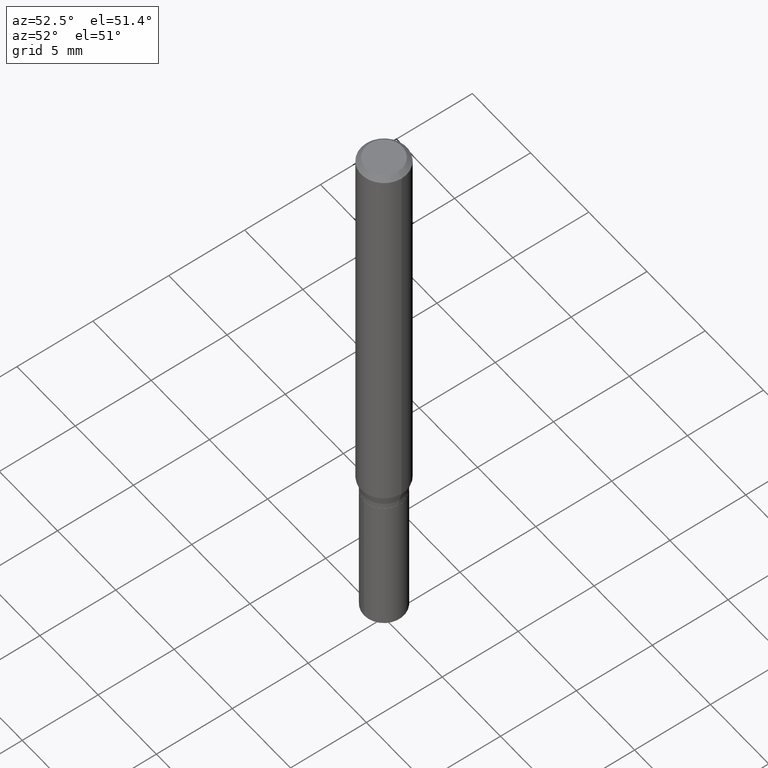
[diagram: clean part render]
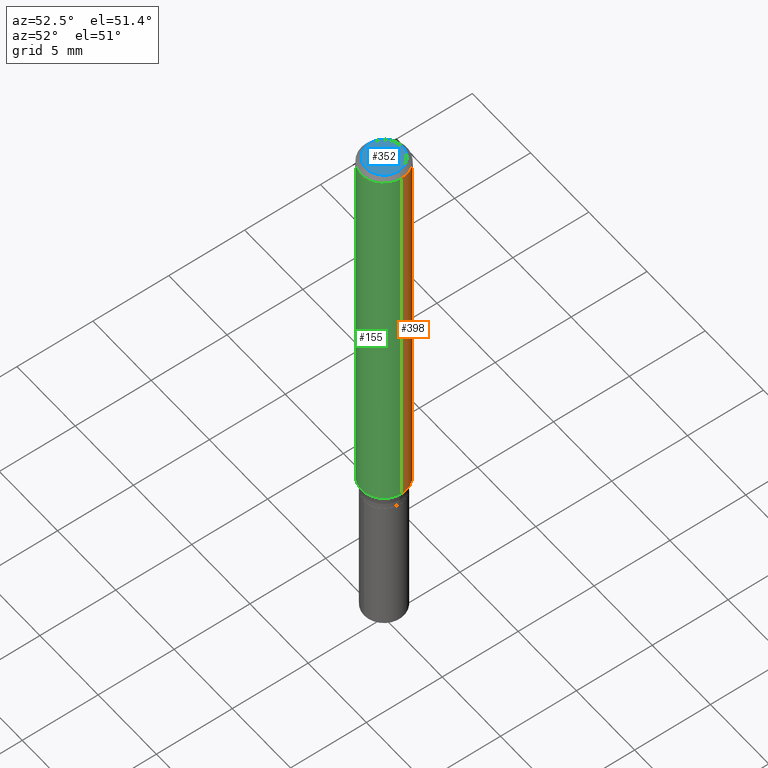
[diagram: same view with three faces highlighted in distinct colors, each labeled with its STEP entity id]
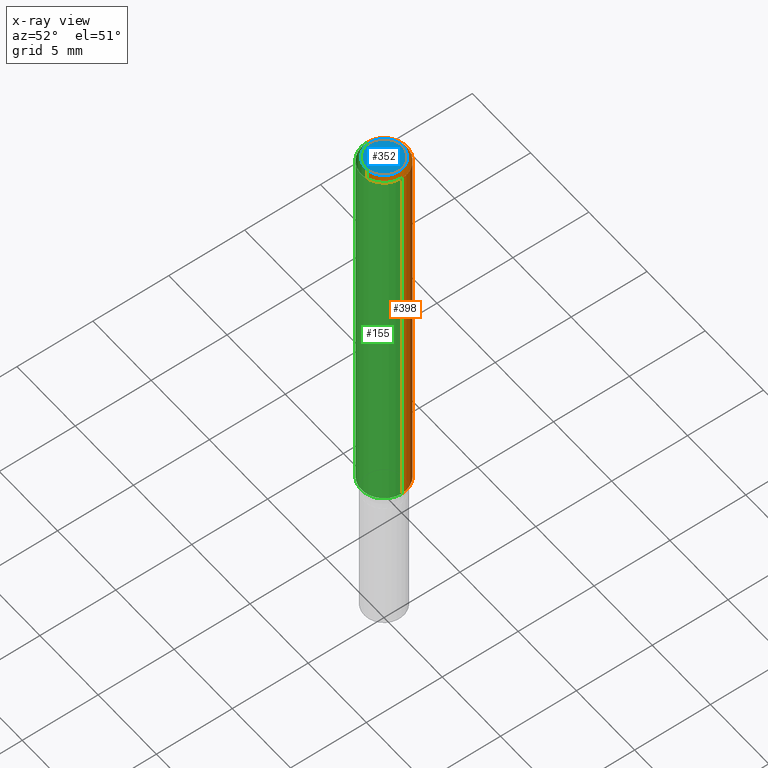
[diagram: x-ray of the same camera — body ghosted, the three highlighted faces saturated]
A machine part, auxiliary view with three faces highlighted in distinct colors.
The next image is the same camera in x-ray (body ghosted, the three faces saturated) — at least one of them is partly hidden behind the body in this view.
Their STEP definitions:

[orange] entity #398 — the highlighted cylindrical surface (edge-blend (fillet) strip) has radius 1.4999 mm, axis along (-0, 0, 1).
#7 = CARTESIAN_POINT ( 'NONE',  ( 0.05905000000000013016, -4.084530494752366346E-15, -1.051756029104746748 ) ) ;
#14 = VERTEX_POINT ( 'NONE', #7 ) ;
#19 = CYLINDRICAL_SURFACE ( 'NONE', #217, 0.05905000000000006771 ) ;
#20 = DIRECTION ( 'NONE',  ( 1.000000000000000000, -6.982962677686265133E-15, 0.000000000000000000 ) ) ;
#38 = DIRECTION ( 'NONE',  ( -2.445468806185136597E-29, 3.491481338843145583E-15, 1.000000000000000000 ) ) ;
#54 = DIRECTION ( 'NONE',  ( 1.000000000000000000, -6.982962677686266711E-15, 4.876176775795936353E-29 ) ) ;
#58 = CIRCLE ( 'NONE', #281, 0.05904999999999999832 ) ;
#81 = CARTESIAN_POINT ( 'NONE',  ( 0.05905000000000006771, -4.123439461173745257E-16, 2.879382386107503723E-30 ) ) ;
#95 = CARTESIAN_POINT ( 'NONE',  ( 0.000000000000000000, 0.000000000000000000, 0.000000000000000000 ) ) ;
#111 = DIRECTION ( 'NONE',  ( 1.000000000000000000, -6.982962677686266711E-15, 0.000000000000000000 ) ) ;
#113 = DIRECTION ( 'NONE',  ( -2.445468806185136597E-29, 3.491481338843145583E-15, 1.000000000000000000 ) ) ;
#125 = LINE ( 'NONE', #322, #293 ) ;
#126 = EDGE_LOOP ( 'NONE', ( #428, #362, #357, #270 ) ) ;
#151 = EDGE_CURVE ( 'NONE', #14, #188, #425, .T. ) ;
#188 = VERTEX_POINT ( 'NONE', #343 ) ;
#196 = VERTEX_POINT ( 'NONE', #241 ) ;
#199 = VERTEX_POINT ( 'NONE', #205 ) ;
#205 = CARTESIAN_POINT ( 'NONE',  ( -0.05905000000000013016, -3.252611063168651144E-15, -1.051756029104746748 ) ) ;
#211 = VECTOR ( 'NONE', #464, 39.37007874015748143 ) ;
#217 = AXIS2_PLACEMENT_3D ( 'NONE', #95, #38, #54 ) ;
#227 = CIRCLE ( 'NONE', #299, 0.05905000000000013016 ) ;
#237 = FACE_OUTER_BOUND ( 'NONE', #126, .T. ) ;
#241 = CARTESIAN_POINT ( 'NONE',  ( -0.05904999999999999832, -1.437134986157024295E-15, -0.01181000000000007218 ) ) ;
#253 = EDGE_CURVE ( 'NONE', #188, #196, #58, .T. ) ;
#270 = ORIENTED_EDGE ( 'NONE', *, *, #151, .F. ) ;
#281 = AXIS2_PLACEMENT_3D ( 'NONE', #340, #113, #111 ) ;
#293 = VECTOR ( 'NONE', #393, 39.37007874015748143 ) ;
#299 = AXIS2_PLACEMENT_3D ( 'NONE', #395, #468, #20 ) ;
#319 = EDGE_CURVE ( 'NONE', #14, #199, #227, .T. ) ;
#322 = CARTESIAN_POINT ( 'NONE',  ( -0.05905000000000006771, 4.195754854663396409E-16, -2.904631170795525045E-30 ) ) ;
#340 = CARTESIAN_POINT ( 'NONE',  ( 2.888098660104664204E-31, -4.123439461173780263E-17, -0.01181000000000007218 ) ) ;
#343 = CARTESIAN_POINT ( 'NONE',  ( 0.05904999999999999832, -4.535783407291118600E-16, -0.01181000000000007218 ) ) ;
#357 = ORIENTED_EDGE ( 'NONE', *, *, #253, .F. ) ;
#362 = ORIENTED_EDGE ( 'NONE', *, *, #394, .T. ) ;
#393 = DIRECTION ( 'NONE',  ( -2.445468806185136877E-29, 3.491481338843145188E-15, 1.000000000000000000 ) ) ;
#394 = EDGE_CURVE ( 'NONE', #199, #196, #125, .T. ) ;
#395 = CARTESIAN_POINT ( 'NONE',  ( 2.572036560892804425E-29, -3.672186548634991426E-15, -1.051756029104746748 ) ) ;
#398 = ADVANCED_FACE ( 'NONE', ( #237 ), #19, .T. ) ;
#425 = LINE ( 'NONE', #81, #211 ) ;
#428 = ORIENTED_EDGE ( 'NONE', *, *, #319, .T. ) ;
#464 = DIRECTION ( 'NONE',  ( -2.445468806185136877E-29, 3.491481338843145188E-15, 1.000000000000000000 ) ) ;
#468 = DIRECTION ( 'NONE',  ( -2.445468806185136597E-29, 3.491481338843145583E-15, 1.000000000000000000 ) ) ;

[blue] entity #352 — the highlighted planar face has unit normal (0, -0, -1).
#30 = DIRECTION ( 'NONE',  ( -1.000000000000000000, 6.982962677686265922E-15, -4.876176775795935793E-29 ) ) ;
#32 = CARTESIAN_POINT ( 'NONE',  ( 0.04724000000000000421, -3.852183633974369345E-16, -3.380025165621689721E-19 ) ) ;
#46 = DIRECTION ( 'NONE',  ( -2.445468806185136597E-29, 3.491481338843145583E-15, 1.000000000000000000 ) ) ;
#57 = CIRCLE ( 'NONE', #194, 0.04724000000000000421 ) ;
#66 = AXIS2_PLACEMENT_3D ( 'NONE', #437, #130, #30 ) ;
#82 = VERTEX_POINT ( 'NONE', #32 ) ;
#84 = CARTESIAN_POINT ( 'NONE',  ( 8.265746106709734507E-48, -1.180129479067563789E-33, -3.380025165646692144E-19 ) ) ;
#89 = EDGE_CURVE ( 'NONE', #382, #82, #57, .T. ) ;
#104 = DIRECTION ( 'NONE',  ( -2.445468806185136597E-29, 3.491481338843145583E-15, 1.000000000000000000 ) ) ;
#130 = DIRECTION ( 'NONE',  ( 2.438088387897960049E-29, -3.491481338843145188E-15, -1.000000000000000000 ) ) ;
#156 = FACE_OUTER_BOUND ( 'NONE', #208, .T. ) ;
#159 = EDGE_CURVE ( 'NONE', #82, #382, #250, .T. ) ;
#168 = DIRECTION ( 'NONE',  ( 1.000000000000000000, -6.982962677686266711E-15, 4.876185090822587894E-29 ) ) ;
#194 = AXIS2_PLACEMENT_3D ( 'NONE', #483, #104, #168 ) ;
#208 = EDGE_LOOP ( 'NONE', ( #275, #355 ) ) ;
#225 = AXIS2_PLACEMENT_3D ( 'NONE', #84, #46, #315 ) ;
#250 = CIRCLE ( 'NONE', #225, 0.04724000000000000421 ) ;
#275 = ORIENTED_EDGE ( 'NONE', *, *, #89, .T. ) ;
#291 = CARTESIAN_POINT ( 'NONE',  ( -0.04724000000000000421, 3.504923541997677355E-16, -3.380025165670481712E-19 ) ) ;
#315 = DIRECTION ( 'NONE',  ( 1.000000000000000000, -6.982962677686266711E-15, 4.876185090822587894E-29 ) ) ;
#352 = ADVANCED_FACE ( 'NONE', ( #156 ), #467, .F. ) ;
#355 = ORIENTED_EDGE ( 'NONE', *, *, #159, .T. ) ;
#382 = VERTEX_POINT ( 'NONE', #291 ) ;
#437 = CARTESIAN_POINT ( 'NONE',  ( 4.132873053354867254E-48, -5.900647395337818946E-34, -1.690012582823346072E-19 ) ) ;
#467 = PLANE ( 'NONE',  #66 ) ;
#483 = CARTESIAN_POINT ( 'NONE',  ( 8.265746106709734507E-48, -1.180129479067563789E-33, -3.380025165646692144E-19 ) ) ;

[green] entity #155 — the highlighted cylindrical surface (edge-blend (fillet) strip) has radius 1.4999 mm, axis along (-0, 0, 1).
#5 = CARTESIAN_POINT ( 'NONE',  ( 2.888098660104664204E-31, -4.123439461173780263E-17, -0.01181000000000007218 ) ) ;
#7 = CARTESIAN_POINT ( 'NONE',  ( 0.05905000000000013016, -4.084530494752366346E-15, -1.051756029104746748 ) ) ;
#11 = DIRECTION ( 'NONE',  ( -2.445468806185136597E-29, 3.491481338843145583E-15, 1.000000000000000000 ) ) ;
#14 = VERTEX_POINT ( 'NONE', #7 ) ;
#28 = AXIS2_PLACEMENT_3D ( 'NONE', #5, #377, #170 ) ;
#43 = CARTESIAN_POINT ( 'NONE',  ( 0.000000000000000000, 0.000000000000000000, 0.000000000000000000 ) ) ;
#81 = CARTESIAN_POINT ( 'NONE',  ( 0.05905000000000006771, -4.123439461173745257E-16, 2.879382386107503723E-30 ) ) ;
#117 = FACE_OUTER_BOUND ( 'NONE', #120, .T. ) ;
#120 = EDGE_LOOP ( 'NONE', ( #296, #153, #235, #351 ) ) ;
#123 = CIRCLE ( 'NONE', #144, 0.05905000000000013016 ) ;
#125 = LINE ( 'NONE', #322, #293 ) ;
#144 = AXIS2_PLACEMENT_3D ( 'NONE', #201, #11, #150 ) ;
#150 = DIRECTION ( 'NONE',  ( 1.000000000000000000, -6.982962677686265133E-15, 0.000000000000000000 ) ) ;
#151 = EDGE_CURVE ( 'NONE', #14, #188, #425, .T. ) ;
#153 = ORIENTED_EDGE ( 'NONE', *, *, #326, .T. ) ;
#155 = ADVANCED_FACE ( 'NONE', ( #117 ), #421, .T. ) ;
#170 = DIRECTION ( 'NONE',  ( 1.000000000000000000, -6.982962677686266711E-15, 0.000000000000000000 ) ) ;
#188 = VERTEX_POINT ( 'NONE', #343 ) ;
#192 = DIRECTION ( 'NONE',  ( -2.445468806185136597E-29, 3.491481338843145583E-15, 1.000000000000000000 ) ) ;
#196 = VERTEX_POINT ( 'NONE', #241 ) ;
#199 = VERTEX_POINT ( 'NONE', #205 ) ;
#201 = CARTESIAN_POINT ( 'NONE',  ( 2.572036560892804425E-29, -3.672186548634991426E-15, -1.051756029104746748 ) ) ;
#204 = CIRCLE ( 'NONE', #28, 0.05904999999999999832 ) ;
#205 = CARTESIAN_POINT ( 'NONE',  ( -0.05905000000000013016, -3.252611063168651144E-15, -1.051756029104746748 ) ) ;
#211 = VECTOR ( 'NONE', #464, 39.37007874015748143 ) ;
#230 = EDGE_CURVE ( 'NONE', #196, #188, #204, .T. ) ;
#235 = ORIENTED_EDGE ( 'NONE', *, *, #151, .T. ) ;
#241 = CARTESIAN_POINT ( 'NONE',  ( -0.05904999999999999832, -1.437134986157024295E-15, -0.01181000000000007218 ) ) ;
#273 = DIRECTION ( 'NONE',  ( 1.000000000000000000, -6.982962677686266711E-15, 4.876176775795936353E-29 ) ) ;
#293 = VECTOR ( 'NONE', #393, 39.37007874015748143 ) ;
#296 = ORIENTED_EDGE ( 'NONE', *, *, #394, .F. ) ;
#322 = CARTESIAN_POINT ( 'NONE',  ( -0.05905000000000006771, 4.195754854663396409E-16, -2.904631170795525045E-30 ) ) ;
#326 = EDGE_CURVE ( 'NONE', #199, #14, #123, .T. ) ;
#343 = CARTESIAN_POINT ( 'NONE',  ( 0.05904999999999999832, -4.535783407291118600E-16, -0.01181000000000007218 ) ) ;
#351 = ORIENTED_EDGE ( 'NONE', *, *, #230, .F. ) ;
#377 = DIRECTION ( 'NONE',  ( -2.445468806185136597E-29, 3.491481338843145583E-15, 1.000000000000000000 ) ) ;
#393 = DIRECTION ( 'NONE',  ( -2.445468806185136877E-29, 3.491481338843145188E-15, 1.000000000000000000 ) ) ;
#394 = EDGE_CURVE ( 'NONE', #199, #196, #125, .T. ) ;
#421 = CYLINDRICAL_SURFACE ( 'NONE', #451, 0.05905000000000006771 ) ;
#425 = LINE ( 'NONE', #81, #211 ) ;
#451 = AXIS2_PLACEMENT_3D ( 'NONE', #43, #192, #273 ) ;
#464 = DIRECTION ( 'NONE',  ( -2.445468806185136877E-29, 3.491481338843145188E-15, 1.000000000000000000 ) ) ;